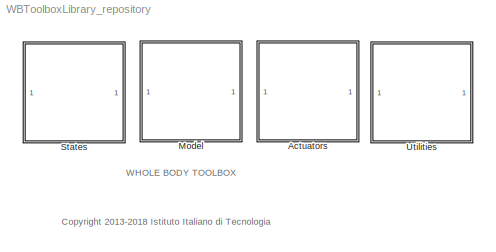
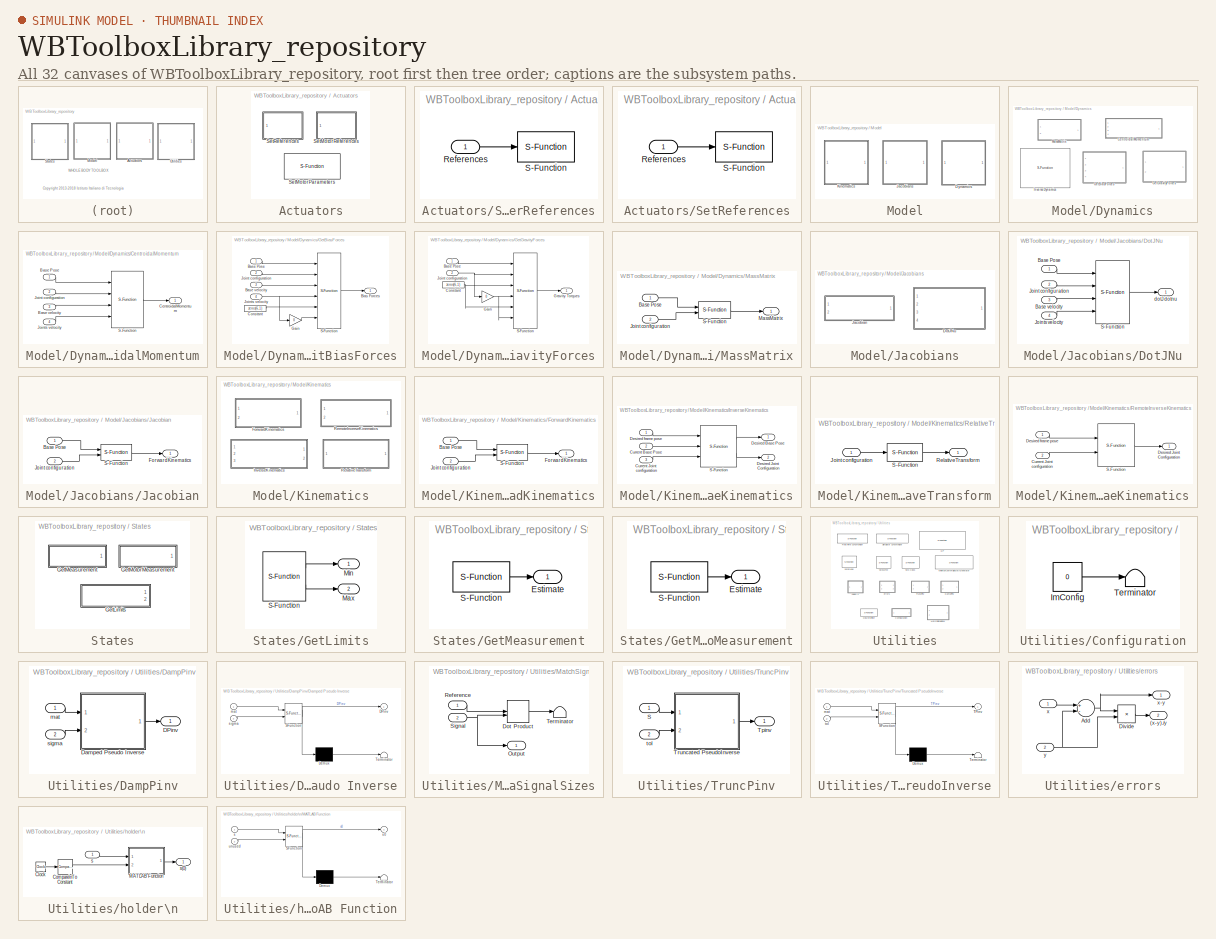
[diagram: thumbnail index - all 32 canvases of the model, root first then tree order]
MODEL WBToolboxLibrary_repository
KIND library
BLOCK [SubSystem] Actuators
  Ports = []
  RequestExecContextInheritance = off
  SID = 224
BLOCK [S-Function] Actuators/SetMotorParameters
  EnableBusSupport = off
  FunctionName = BlockFactory
  Parameters = 'SetMotorParameters','WBToolbox',WBTConfigParameters,configBlockAbsName,readP,readI,readD,pidType,setKTau,kTau,setBemf,bemf
  Ports = [1, 1]
  SFcnIsStateOwnerBlock = off
  SFunctionDeploymentMode = off
  SID = 1847
BLOCK [SubSystem] Actuators/SetMotorReferences
  Ports = [1]
  RequestExecContextInheritance = off
  SID = 1791
BLOCK [Inport] Actuators/SetMotorReferences/References
  IconDisplay = Port number
  SID = 1794
BLOCK [S-Function] Actuators/SetMotorReferences/S-Function
  EnableBusSupport = off
  FunctionName = BlockFactory
  Parameters = 'SetReferences','WBToolbox',WBTConfigParameters,configBlockAbsName,controlType,refSpeed
  Ports = [1]
  SFcnIsStateOwnerBlock = off
  SFunctionDeploymentMode = off
  SID = 1795
BLOCK [SubSystem] Actuators/SetReferences
  Ports = [1]
  RequestExecContextInheritance = off
  SID = 1767
BLOCK [Inport] Actuators/SetReferences/References
  IconDisplay = Port number
  SID = 1768
BLOCK [S-Function] Actuators/SetReferences/S-Function
  EnableBusSupport = off
  FunctionName = BlockFactory
  Parameters = 'SetReferences','WBToolbox',WBTConfigParameters,configBlockAbsName,controlType,refTrajectory
  Ports = [1]
  SFcnIsStateOwnerBlock = off
  SFunctionDeploymentMode = off
  SID = 1769
BLOCK [SubSystem] Model
  Ports = []
  RequestExecContextInheritance = off
  SID = 209
BLOCK [SubSystem] Model/Dynamics
  Ports = []
  RequestExecContextInheritance = off
  SID = 369
BLOCK [SubSystem] Model/Dynamics/CentroidalMomentum
  Ports = [4, 1]
  RequestExecContextInheritance = off
  SID = 1694
BLOCK [Inport] Model/Dynamics/CentroidalMomentum/Base Pose
  IconDisplay = Port number
  SID = 1695
BLOCK [Inport] Model/Dynamics/CentroidalMomentum/Base velocity
  IconDisplay = Port number
  Port = 3
  SID = 1697
BLOCK [Outport] Model/Dynamics/CentroidalMomentum/CentroidalMomentum
  IconDisplay = Port number
  SID = 1700
BLOCK [Inport] Model/Dynamics/CentroidalMomentum/Joint configuration
  IconDisplay = Port number
  Port = 2
  SID = 1696
BLOCK [Inport] Model/Dynamics/CentroidalMomentum/Joints velocity
  IconDisplay = Port number
  Port = 4
  SID = 1698
BLOCK [S-Function] Model/Dynamics/CentroidalMomentum/S-Function
  EnableBusSupport = off
  FunctionName = BlockFactory
  Parameters = 'CentroidalMomentum','WBToolbox',WBTConfigParameters,configBlockAbsName
  Ports = [4, 1]
  SFcnIsStateOwnerBlock = off
  SFunctionDeploymentMode = off
  SID = 1699
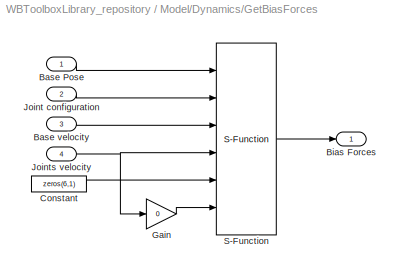
BLOCK [SubSystem] Model/Dynamics/GetBiasForces
  Ports = [4, 1]
  RequestExecContextInheritance = off
  SID = 1724
BLOCK [Inport] Model/Dynamics/GetBiasForces/Base Pose
  IconDisplay = Port number
  SID = 1776
BLOCK [Inport] Model/Dynamics/GetBiasForces/Base velocity
  IconDisplay = Port number
  Port = 3
  SID = 1778
BLOCK [Outport] Model/Dynamics/GetBiasForces/Bias Forces
  IconDisplay = Port number
  SID = 1783
BLOCK [Constant] Model/Dynamics/GetBiasForces/Constant
  SID = 1780
  Value = zeros(6,1)
BLOCK [Gain] Model/Dynamics/GetBiasForces/Gain
  Gain = 0
  OutDataTypeStr = Inherit: Inherit via internal rule
  ParamDataTypeStr = Inherit: Inherit via internal rule
  SID = 1781
  SaturateOnIntegerOverflow = off
BLOCK [Inport] Model/Dynamics/GetBiasForces/Joint configuration
  IconDisplay = Port number
  Port = 2
  SID = 1777
BLOCK [Inport] Model/Dynamics/GetBiasForces/Joints velocity
  IconDisplay = Port number
  Port = 4
  SID = 1779
BLOCK [S-Function] Model/Dynamics/GetBiasForces/S-Function
  EnableBusSupport = off
  FunctionName = BlockFactory
  Parameters = 'InverseDynamics','WBToolbox',WBTConfigParameters,configBlockAbsName
  Ports = [6, 1]
  SFcnIsStateOwnerBlock = off
  SFunctionDeploymentMode = off
  SID = 1782
BLOCK [SubSystem] Model/Dynamics/GetGravityForces
  Ports = [2, 1]
  RequestExecContextInheritance = off
  SID = 1733
BLOCK [Inport] Model/Dynamics/GetGravityForces/Base Pose
  IconDisplay = Port number
  SID = 1784
BLOCK [Constant] Model/Dynamics/GetGravityForces/Constant
  SID = 1786
  Value = zeros(6,1)
BLOCK [Gain] Model/Dynamics/GetGravityForces/Gain
  Gain = 0
  OutDataTypeStr = Inherit: Inherit via internal rule
  ParamDataTypeStr = Inherit: Inherit via internal rule
  SID = 1787
  SaturateOnIntegerOverflow = off
BLOCK [Outport] Model/Dynamics/GetGravityForces/Gravity Torques
  IconDisplay = Port number
  SID = 1789
BLOCK [Inport] Model/Dynamics/GetGravityForces/Joint configuration
  IconDisplay = Port number
  Port = 2
  SID = 1785
BLOCK [S-Function] Model/Dynamics/GetGravityForces/S-Function
  EnableBusSupport = off
  FunctionName = BlockFactory
  Parameters = 'InverseDynamics','WBToolbox',WBTConfigParameters,configBlockAbsName
  Ports = [6, 1]
  SFcnIsStateOwnerBlock = off
  SFunctionDeploymentMode = off
  SID = 1788
BLOCK [S-Function] Model/Dynamics/InverseDynamics
  EnableBusSupport = off
  FunctionName = BlockFactory
  Parameters = 'InverseDynamics','WBToolbox',WBTConfigParameters,configBlockAbsName
  Ports = [6, 1]
  SFcnIsStateOwnerBlock = off
  SFunctionDeploymentMode = off
  SID = 1748
BLOCK [SubSystem] Model/Dynamics/MassMatrix
  Ports = [2, 1]
  RequestExecContextInheritance = off
  SID = 1633
BLOCK [Inport] Model/Dynamics/MassMatrix/Base Pose
  IconDisplay = Port number
  SID = 1634
BLOCK [Inport] Model/Dynamics/MassMatrix/Joint configuration
  IconDisplay = Port number
  Port = 2
  SID = 1635
BLOCK [Outport] Model/Dynamics/MassMatrix/MassMatrix
  IconDisplay = Port number
  SID = 1637
BLOCK [S-Function] Model/Dynamics/MassMatrix/S-Function
  EnableBusSupport = off
  FunctionName = BlockFactory
  Parameters = 'MassMatrix','WBToolbox',WBTConfigParameters,configBlockAbsName
  Ports = [2, 1]
  SFcnIsStateOwnerBlock = off
  SFunctionDeploymentMode = off
  SID = 1636
BLOCK [SubSystem] Model/Jacobians
  Ports = []
  RequestExecContextInheritance = off
  SID = 202
BLOCK [SubSystem] Model/Jacobians/DotJNu
  Ports = [4, 1]
  RequestExecContextInheritance = off
  SID = 1683
BLOCK [Inport] Model/Jacobians/DotJNu/Base Pose
  IconDisplay = Port number
  SID = 1684
BLOCK [Inport] Model/Jacobians/DotJNu/Base velocity
  IconDisplay = Port number
  Port = 3
  SID = 1686
BLOCK [Inport] Model/Jacobians/DotJNu/Joint configuration
  IconDisplay = Port number
  Port = 2
  SID = 1685
BLOCK [Inport] Model/Jacobians/DotJNu/Joints velocity
  IconDisplay = Port number
  Port = 4
  SID = 1687
BLOCK [S-Function] Model/Jacobians/DotJNu/S-Function
  EnableBusSupport = off
  FunctionName = BlockFactory
  Parameters = 'DotJNu','WBToolbox',WBTConfigParameters,configBlockAbsName,frameName
  Ports = [4, 1]
  SFcnIsStateOwnerBlock = off
  SFunctionDeploymentMode = off
  SID = 1688
BLOCK [Outport] Model/Jacobians/DotJNu/dotJ dotnu
  IconDisplay = Port number
  SID = 1689
BLOCK [SubSystem] Model/Jacobians/Jacobian
  Ports = [2, 1]
  RequestExecContextInheritance = off
  SID = 1663
BLOCK [Inport] Model/Jacobians/Jacobian/Base Pose
  IconDisplay = Port number
  SID = 1664
BLOCK [Outport] Model/Jacobians/Jacobian/ForwardKinematics
  IconDisplay = Port number
  SID = 1667
BLOCK [Inport] Model/Jacobians/Jacobian/Joint configuration
  IconDisplay = Port number
  Port = 2
  SID = 1665
BLOCK [S-Function] Model/Jacobians/Jacobian/S-Function
  EnableBusSupport = off
  FunctionName = BlockFactory
  Parameters = 'Jacobian','WBToolbox',WBTConfigParameters,configBlockAbsName,frameName
  Ports = [2, 1]
  SFcnIsStateOwnerBlock = off
  SFunctionDeploymentMode = off
  SID = 1666
BLOCK [SubSystem] Model/Kinematics
  Ports = []
  RequestExecContextInheritance = off
  SID = 176
BLOCK [SubSystem] Model/Kinematics/ForwardKinematics
  Ports = [2, 1]
  RequestExecContextInheritance = off
  SID = 1647
BLOCK [Inport] Model/Kinematics/ForwardKinematics/Base Pose
  IconDisplay = Port number
  SID = 1648
BLOCK [Outport] Model/Kinematics/ForwardKinematics/ForwardKinematics
  IconDisplay = Port number
  SID = 1651
BLOCK [Inport] Model/Kinematics/ForwardKinematics/Joint configuration
  IconDisplay = Port number
  Port = 2
  SID = 1649
BLOCK [S-Function] Model/Kinematics/ForwardKinematics/S-Function
  EnableBusSupport = off
  FunctionName = BlockFactory
  Parameters = 'ForwardKinematics','WBToolbox',WBTConfigParameters,configBlockAbsName,frameName
  Ports = [2, 1]
  SFcnIsStateOwnerBlock = off
  SFunctionDeploymentMode = off
  SID = 1650
BLOCK [SubSystem] Model/Kinematics/InverseKinematics
  Commented = on
  InitFcn = if ~exist('WBT_robotName','var')\n    WBT_robotName = '';\nend\nif ~exist('WBT_modelName','var')\n    WBT_modelName = 'WBT_simulink';\nend\nif ~exist('WBT_wbiFilename','var')\n    WBT_wbiFilename = 'yarpWholeBodyInterface.ini';\nend\nif ~exist('WBT_wbiList','var')\n    WBT_wbiList = 'ROBOT_TORQUE_CONTROL_JOINTS';\nend
  Ports = [3, 2]
  RequestExecContextInheritance = off
  SID = 1754
BLOCK [Inport] Model/Kinematics/InverseKinematics/Current Base Pose
  IconDisplay = Port number
  Port = 2
  SID = 1755
BLOCK [Inport] Model/Kinematics/InverseKinematics/Current Joint configuration
  IconDisplay = Port number
  Port = 3
  SID = 1756
BLOCK [Outport] Model/Kinematics/InverseKinematics/Desired Base Pose
  IconDisplay = Port number
  SID = 1758
BLOCK [Outport] Model/Kinematics/InverseKinematics/Desired Joint Configuration
  IconDisplay = Port number
  Port = 2
  SID = 1760
BLOCK [Inport] Model/Kinematics/InverseKinematics/Desired frame pose
  IconDisplay = Port number
  SID = 1759
BLOCK [S-Function] Model/Kinematics/InverseKinematics/S-Function
  EnableBusSupport = off
  FunctionName = WBToolbox
  Parameters = 'InverseKinematics',robotName,localName,wbiFile,wbiList,baseFrame, endEffFrame,optOption
  Ports = [3, 2]
  SFcnIsStateOwnerBlock = off
  SFunctionDeploymentMode = off
  SID = 1757
BLOCK [SubSystem] Model/Kinematics/RelativeTransform
  Ports = [1, 1]
  RequestExecContextInheritance = off
  SID = 1799
BLOCK [Inport] Model/Kinematics/RelativeTransform/Joint configuration
  IconDisplay = Port number
  SID = 1800
BLOCK [Outport] Model/Kinematics/RelativeTransform/RelativeTransform
  IconDisplay = Port number
  SID = 1803
BLOCK [S-Function] Model/Kinematics/RelativeTransform/S-Function
  EnableBusSupport = off
  FunctionName = BlockFactory
  Parameters = 'RelativeTransform','WBToolbox',WBTConfigParameters,configBlockAbsName,frame1, frame2
  Ports = [1, 1]
  SFcnIsStateOwnerBlock = off
  SFunctionDeploymentMode = off
  SID = 1806
BLOCK [SubSystem] Model/Kinematics/RemoteInverseKinematics
  Commented = on
  InitFcn = if ~exist('WBT_robotName','var')\n    WBT_robotName = '';\nend\nif ~exist('WBT_modelName','var')\n    WBT_modelName = 'WBT_simulink';\nend\nif ~exist('WBT_wbiFilename','var')\n    WBT_wbiFilename = 'yarpWholeBodyInterface.ini';\nend\nif ~exist('WBT_wbiList','var')\n    WBT_wbiList = 'ROBOT_TORQUE_CONTROL_JOINTS';\nend
  Ports = [2, 1]
  RequestExecContextInheritance = off
  SID = 1761
BLOCK [Inport] Model/Kinematics/RemoteInverseKinematics/Current Joint configuration
  IconDisplay = Port number
  Port = 2
  SID = 1763
BLOCK [Outport] Model/Kinematics/RemoteInverseKinematics/Desired Joint Configuration
  IconDisplay = Port number
  SID = 1765
BLOCK [Inport] Model/Kinematics/RemoteInverseKinematics/Desired frame pose
  IconDisplay = Port number
  SID = 1762
BLOCK [S-Function] Model/Kinematics/RemoteInverseKinematics/S-Function
  EnableBusSupport = off
  FunctionName = WBToolbox
  Parameters = 'RemoteInverseKinematics',solverName, dofs, optOption
  Ports = [2, 1]
  SFcnIsStateOwnerBlock = off
  SFunctionDeploymentMode = off
  SID = 1764
BLOCK [SubSystem] States
  Ports = []
  RequestExecContextInheritance = off
  SID = 206
BLOCK [SubSystem] States/GetLimits
  Ports = [0, 2]
  RequestExecContextInheritance = off
  SID = 1690
BLOCK [Outport] States/GetLimits/Max
  IconDisplay = Port number
  Port = 2
  SID = 1690:1693
BLOCK [Outport] States/GetLimits/Min
  IconDisplay = Port number
  SID = 1690:1692
BLOCK [S-Function] States/GetLimits/S-Function
  EnableBusSupport = off
  FunctionName = BlockFactory
  Parameters = 'GetLimits','WBToolbox',WBTConfigParameters,configBlockAbsName,limitsType
  Ports = [0, 2]
  SFcnIsStateOwnerBlock = off
  SFunctionDeploymentMode = off
  SID = 1690:1691
BLOCK [SubSystem] States/GetMeasurement
  Ports = [0, 1]
  RequestExecContextInheritance = off
  SID = 1671
BLOCK [Outport] States/GetMeasurement/Estimate
  IconDisplay = Port number
  SID = 1673
BLOCK [S-Function] States/GetMeasurement/S-Function
  EnableBusSupport = off
  FunctionName = BlockFactory
  Parameters = 'GetMeasurement','WBToolbox',WBTConfigParameters,configBlockAbsName,measuredType
  Ports = [0, 1]
  SFcnIsStateOwnerBlock = off
  SFunctionDeploymentMode = off
  SID = 1672
BLOCK [SubSystem] States/GetMotorMeasurement
  Ports = [0, 1]
  RequestExecContextInheritance = off
  SID = 1796
BLOCK [Outport] States/GetMotorMeasurement/Estimate
  IconDisplay = Port number
  SID = 1798
BLOCK [S-Function] States/GetMotorMeasurement/S-Function
  EnableBusSupport = off
  FunctionName = BlockFactory
  Parameters = 'GetMeasurement','WBToolbox',WBTConfigParameters,configBlockAbsName,measuredType
  Ports = [0, 1]
  SFcnIsStateOwnerBlock = off
  SFunctionDeploymentMode = off
  SID = 1797
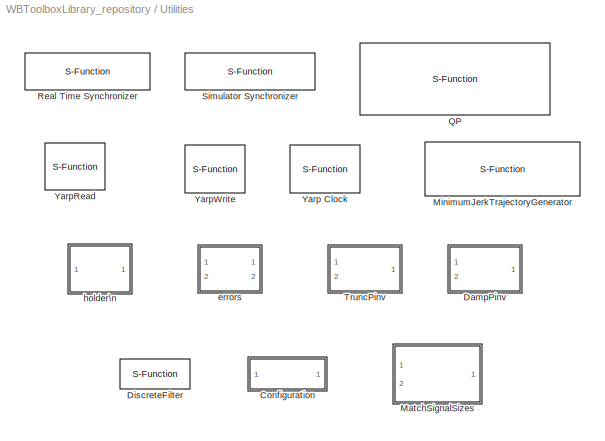
BLOCK [SubSystem] Utilities
  Ports = []
  RequestExecContextInheritance = off
  SID = 192
BLOCK [SubSystem] Utilities/Configuration
  InitFcn = source = get_param(gcb,'ConfigSource');\n\nif strcmp(source, 'Workspace')\n    object = get_param(gcb,'ConfigObject');\n    WBToolbox.ConfigurationToMask(gcb, object);\nend\n\nWBToolbox.MaskToConfiguration(gcb);\n\nclear object source
  Ports = []
  RequestExecContextInheritance = off
  SID = 1774
BLOCK [Constant] Utilities/Configuration/ImConfig
  SID = 1774:67
  Value = 0
BLOCK [Terminator] Utilities/Configuration/Terminator
  SID = 1774:68
BLOCK [SubSystem] Utilities/DampPinv
  Ports = [2, 1]
  RequestExecContextInheritance = off
  SID = 104
BLOCK [Outport] Utilities/DampPinv/DPinv
  IconDisplay = Port number
  SID = 108
BLOCK [SubSystem] Utilities/DampPinv/Damped Pseudo Inverse
  ErrorFcn = Stateflow.Translate.translate
  PermitHierarchicalResolution = ExplicitOnly
  Ports = [2, 1]
  RequestExecContextInheritance = off
  SFBlockType = MATLAB Function
  SID = 107
  TreatAsAtomicUnit = on
BLOCK [Demux] Utilities/DampPinv/Damped Pseudo Inverse/ Demux 
  Outputs = 1
  Ports = [1, 1]
  SID = 107::1627
BLOCK [S-Function] Utilities/DampPinv/Damped Pseudo Inverse/ SFunction 
  EnableBusSupport = off
  FunctionName = sf_sfun
  PortCounts = [2 2]
  Ports = [2, 2]
  SFcnIsStateOwnerBlock = off
  SFunctionDeploymentMode = off
  SID = 107::1626
  Tag = Stateflow S-Function WBToolboxLibrary_repository 6
BLOCK [Terminator] Utilities/DampPinv/Damped Pseudo Inverse/ Terminator 
  SID = 107::1628
BLOCK [Outport] Utilities/DampPinv/Damped Pseudo Inverse/DPinv
  IconDisplay = Port number
  SID = 107::5
BLOCK [Inport] Utilities/DampPinv/Damped Pseudo Inverse/mat
  IconDisplay = Port number
  SID = 107::1
BLOCK [Inport] Utilities/DampPinv/Damped Pseudo Inverse/sigma
  IconDisplay = Port number
  Port = 2
  SID = 107::25
BLOCK [Inport] Utilities/DampPinv/mat
  IconDisplay = Port number
  SID = 105
BLOCK [Inport] Utilities/DampPinv/sigma
  IconDisplay = Port number
  Port = 2
  SID = 106
BLOCK [S-Function] Utilities/DiscreteFilter
  EnableBusSupport = off
  FunctionName = BlockFactory
  Parameters = 'DiscreteFilter','WBToolbox',filterDataStruct
  Ports = [1, 1]
  SFcnIsStateOwnerBlock = off
  SFunctionDeploymentMode = off
  SID = 1790
BLOCK [SubSystem] Utilities/MatchSignalSizes
  Ports = [2, 1]
  RequestExecContextInheritance = off
  SID = 1818
BLOCK [DotProduct] Utilities/MatchSignalSizes/Dot Product
  OutDataTypeStr = Inherit: Inherit via internal rule
  SID = 1836
BLOCK [Outport] Utilities/MatchSignalSizes/Output
  IconDisplay = Port number
  SID = 1823
BLOCK [Inport] Utilities/MatchSignalSizes/Reference
  IconDisplay = Port number
  SID = 1819
BLOCK [Inport] Utilities/MatchSignalSizes/Signal
  IconDisplay = Port number
  Port = 2
  SID = 1820
BLOCK [Terminator] Utilities/MatchSignalSizes/Terminator
  SID = 1822
BLOCK [S-Function] Utilities/MinimumJerkTrajectoryGenerator
  EnableBusSupport = off
  FunctionName = BlockFactory
  Parameters = 'MinimumJerkTrajectoryGenerator','WBToolbox',sampleTime,settlingTime,firstDerivatives,secondDerivatives,explicitInitialValue,externalSettlingTime,resetOnSettlingTime
  Ports = [1, 3]
  SFcnIsStateOwnerBlock = off
  SFunctionDeploymentMode = off
  SID = 1747
BLOCK [S-Function] Utilities/QP
  EnableBusSupport = off
  FunctionName = BlockFactory
  Parameters = 'QpOases','WBToolbox',lbA,ubA,lb,ub,computeObjVal,stopIfFails
  Ports = [4, 2]
  SFcnIsStateOwnerBlock = off
  SFunctionDeploymentMode = off
  SID = 1807
BLOCK [S-Function] Utilities/Real Time Synchronizer
  EnableBusSupport = off
  FunctionName = BlockFactory
  Parameters = 'RealTimeSynchronizer','WBToolbox',period
  Ports = []
  SFcnIsStateOwnerBlock = off
  SFunctionDeploymentMode = off
  SID = 1657
BLOCK [S-Function] Utilities/Simulator Synchronizer
  EnableBusSupport = off
  FunctionName = BlockFactory
  Parameters = 'SimulatorSynchronizer','WBToolbox',period, serverPortName, clientPortName
  Ports = []
  SFcnIsStateOwnerBlock = off
  SFunctionDeploymentMode = off
  SID = 1658
BLOCK [SubSystem] Utilities/TruncPinv
  Ports = [2, 1]
  RequestExecContextInheritance = off
  SID = 109
BLOCK [Inport] Utilities/TruncPinv/S
  IconDisplay = Port number
  SID = 110
BLOCK [Outport] Utilities/TruncPinv/Tpinv
  IconDisplay = Port number
  SID = 113
BLOCK [SubSystem] Utilities/TruncPinv/Truncated PseudoInverse
  ErrorFcn = Stateflow.Translate.translate
  PermitHierarchicalResolution = ExplicitOnly
  Ports = [2, 1]
  RequestExecContextInheritance = off
  SFBlockType = MATLAB Function
  SID = 112
  TreatAsAtomicUnit = on
BLOCK [Demux] Utilities/TruncPinv/Truncated PseudoInverse/ Demux 
  Outputs = 1
  Ports = [1, 1]
  SID = 112::1618
BLOCK [S-Function] Utilities/TruncPinv/Truncated PseudoInverse/ SFunction 
  EnableBusSupport = off
  FunctionName = sf_sfun
  PortCounts = [2 2]
  Ports = [2, 2]
  SFcnIsStateOwnerBlock = off
  SFunctionDeploymentMode = off
  SID = 112::1617
  Tag = Stateflow S-Function WBToolboxLibrary_repository 7
BLOCK [Terminator] Utilities/TruncPinv/Truncated PseudoInverse/ Terminator 
  SID = 112::1619
BLOCK [Outport] Utilities/TruncPinv/Truncated PseudoInverse/TPinv
  IconDisplay = Port number
  SID = 112::5
BLOCK [Inport] Utilities/TruncPinv/Truncated PseudoInverse/mat
  IconDisplay = Port number
  SID = 112::1
BLOCK [Inport] Utilities/TruncPinv/Truncated PseudoInverse/tol
  IconDisplay = Port number
  Port = 2
  SID = 112::25
BLOCK [Inport] Utilities/TruncPinv/tol
  IconDisplay = Port number
  Port = 2
  SID = 111
BLOCK [S-Function] Utilities/Yarp Clock
  EnableBusSupport = off
  FunctionName = BlockFactory
  Parameters = 'YarpClock','WBToolbox'
  Ports = [0, 1]
  SFcnIsStateOwnerBlock = off
  SFunctionDeploymentMode = off
  SID = 1773
BLOCK [S-Function] Utilities/YarpRead
  EnableBusSupport = off
  FunctionName = BlockFactory
  Parameters = 'YarpRead','WBToolbox',portName,signalSize,blocking,timestamp,autoconnect,errorOnConnection,timeout
  Ports = [0, 2]
  SFcnIsStateOwnerBlock = off
  SFunctionDeploymentMode = off
  SID = 1632
BLOCK [S-Function] Utilities/YarpWrite
  EnableBusSupport = off
  FunctionName = BlockFactory
  Parameters = 'YarpWrite','WBToolbox',portName,autoconnect,errorOnConnection
  Ports = [1]
  SFcnIsStateOwnerBlock = off
  SFunctionDeploymentMode = off
  SID = 1659
BLOCK [SubSystem] Utilities/errors
  Ports = [2, 2]
  RequestExecContextInheritance = off
  SID = 714
BLOCK [Outport] Utilities/errors/(x-y).//y
  IconDisplay = Port number
  Port = 2
  SID = 720
BLOCK [Sum] Utilities/errors/Add
  InputSameDT = off
  Inputs = +-
  OutDataTypeStr = Inherit: Inherit via internal rule
  Ports = [2, 1]
  SID = 717
  SaturateOnIntegerOverflow = off
BLOCK [Product] Utilities/errors/Divide
  InputSameDT = off
  Inputs = */
  OutDataTypeStr = Inherit: Inherit via internal rule
  Ports = [2, 1]
  RndMeth = Floor
  SID = 718
  SaturateOnIntegerOverflow = off
BLOCK [Inport] Utilities/errors/x
  IconDisplay = Port number
  SID = 715
BLOCK [Outport] Utilities/errors/x-y
  IconDisplay = Port number
  SID = 719
BLOCK [Inport] Utilities/errors/y
  IconDisplay = Port number
  Port = 2
  SID = 716
BLOCK [SubSystem] Utilities/holder\n
  Ports = [1, 1]
  RequestExecContextInheritance = off
  SID = 1296
BLOCK [Clock] Utilities/holder\n/Clock
  SID = 1298
BLOCK [Reference] Utilities/holder\n/Compare\nTo Constant  REF=simulink/Logic and Bit\nOperations/Compare\nTo Constant
  OutDataTypeStr = boolean
  Ports = [1, 1]
  SID = 1299
  SourceBlock = simulink/Logic and Bit\nOperations/Compare\nTo Constant
  SourceProductBaseCode = SL
  SourceProductName = Simulink
  SourceType = Compare To Constant
  ZeroCross = on
  const = 0
  relop = ==
BLOCK [SubSystem] Utilities/holder\n/MATLAB Function
  ErrorFcn = Stateflow.Translate.translate
  PermitHierarchicalResolution = ExplicitOnly
  Ports = [2, 1]
  RequestExecContextInheritance = off
  SFBlockType = MATLAB Function
  SID = 1300
  TreatAsAtomicUnit = on
BLOCK [Demux] Utilities/holder\n/MATLAB Function/ Demux 
  Outputs = 1
  Ports = [1, 1]
  SID = 1300::1624
BLOCK [S-Function] Utilities/holder\n/MATLAB Function/ SFunction 
  EnableBusSupport = off
  FunctionName = sf_sfun
  PortCounts = [2 2]
  Ports = [2, 2]
  SFcnIsStateOwnerBlock = off
  SFunctionDeploymentMode = off
  SID = 1300::1623
  Tag = Stateflow S-Function WBToolboxLibrary_repository 1
BLOCK [Terminator] Utilities/holder\n/MATLAB Function/ Terminator 
  SID = 1300::1625
BLOCK [Inport] Utilities/holder\n/MATLAB Function/s
  IconDisplay = Port number
  SID = 1300::24
BLOCK [Outport] Utilities/holder\n/MATLAB Function/s0
  IconDisplay = Port number
  SID = 1300::25
BLOCK [Inport] Utilities/holder\n/MATLAB Function/unused
  IconDisplay = Port number
  Port = 2
  SID = 1300::26
BLOCK [Inport] Utilities/holder\n/s
  IconDisplay = Port number
  SID = 1297
BLOCK [Outport] Utilities/holder\n/s(0)
  IconDisplay = Port number
  SID = 1301
ANNOTATION (root): \n \n <copyright redacted>\n \n This software is supported by: \n FP7 EU Project CoDyCo (No. 600716 ICT 2011.2.1) http://www.codyco.eu \n H2020 EU Project AnDy (No. 731540 H2020-ICT-2016-1) http://andy-project.eu
ANNOTATION (root): WHOLE BODY TOOLBOX
LINE Actuators/SetMotorReferences/References:1 -> Actuators/SetMotorReferences/S-Function:1
LINE Actuators/SetReferences/References:1 -> Actuators/SetReferences/S-Function:1
LINE Model/Dynamics/CentroidalMomentum/Base Pose:1 -> Model/Dynamics/CentroidalMomentum/S-Function:1
LINE Model/Dynamics/CentroidalMomentum/Base velocity:1 -> Model/Dynamics/CentroidalMomentum/S-Function:3
LINE Model/Dynamics/CentroidalMomentum/Joint configuration:1 -> Model/Dynamics/CentroidalMomentum/S-Function:2
LINE Model/Dynamics/CentroidalMomentum/Joints velocity:1 -> Model/Dynamics/CentroidalMomentum/S-Function:4
LINE Model/Dynamics/CentroidalMomentum/S-Function:1 -> Model/Dynamics/CentroidalMomentum/CentroidalMomentum:1
LINE Model/Dynamics/GetBiasForces/Base Pose:1 -> Model/Dynamics/GetBiasForces/S-Function:1
LINE Model/Dynamics/GetBiasForces/Base velocity:1 -> Model/Dynamics/GetBiasForces/S-Function:3
LINE Model/Dynamics/GetBiasForces/Constant:1 -> Model/Dynamics/GetBiasForces/S-Function:5
LINE Model/Dynamics/GetBiasForces/Gain:1 -> Model/Dynamics/GetBiasForces/S-Function:6
LINE Model/Dynamics/GetBiasForces/Joint configuration:1 -> Model/Dynamics/GetBiasForces/S-Function:2
NET Model/Dynamics/GetBiasForces/Joints velocity:1 -> Model/Dynamics/GetBiasForces/Gain:1, Model/Dynamics/GetBiasForces/S-Function:4
LINE Model/Dynamics/GetBiasForces/S-Function:1 -> Model/Dynamics/GetBiasForces/Bias Forces:1
LINE Model/Dynamics/GetGravityForces/Base Pose:1 -> Model/Dynamics/GetGravityForces/S-Function:1
NET Model/Dynamics/GetGravityForces/Constant:1 -> Model/Dynamics/GetGravityForces/S-Function:3, Model/Dynamics/GetGravityForces/S-Function:5
NET Model/Dynamics/GetGravityForces/Gain:1 -> Model/Dynamics/GetGravityForces/S-Function:4, Model/Dynamics/GetGravityForces/S-Function:6
NET Model/Dynamics/GetGravityForces/Joint configuration:1 -> Model/Dynamics/GetGravityForces/Gain:1, Model/Dynamics/GetGravityForces/S-Function:2
LINE Model/Dynamics/GetGravityForces/S-Function:1 -> Model/Dynamics/GetGravityForces/Gravity Torques:1
LINE Model/Dynamics/MassMatrix/Base Pose:1 -> Model/Dynamics/MassMatrix/S-Function:1
LINE Model/Dynamics/MassMatrix/Joint configuration:1 -> Model/Dynamics/MassMatrix/S-Function:2
LINE Model/Dynamics/MassMatrix/S-Function:1 -> Model/Dynamics/MassMatrix/MassMatrix:1
LINE Model/Jacobians/DotJNu/Base Pose:1 -> Model/Jacobians/DotJNu/S-Function:1
LINE Model/Jacobians/DotJNu/Base velocity:1 -> Model/Jacobians/DotJNu/S-Function:3
LINE Model/Jacobians/DotJNu/Joint configuration:1 -> Model/Jacobians/DotJNu/S-Function:2
LINE Model/Jacobians/DotJNu/Joints velocity:1 -> Model/Jacobians/DotJNu/S-Function:4
LINE Model/Jacobians/DotJNu/S-Function:1 -> Model/Jacobians/DotJNu/dotJ dotnu:1
LINE Model/Jacobians/Jacobian/Base Pose:1 -> Model/Jacobians/Jacobian/S-Function:1
LINE Model/Jacobians/Jacobian/Joint configuration:1 -> Model/Jacobians/Jacobian/S-Function:2
LINE Model/Jacobians/Jacobian/S-Function:1 -> Model/Jacobians/Jacobian/ForwardKinematics:1
LINE Model/Kinematics/ForwardKinematics/Base Pose:1 -> Model/Kinematics/ForwardKinematics/S-Function:1
LINE Model/Kinematics/ForwardKinematics/Joint configuration:1 -> Model/Kinematics/ForwardKinematics/S-Function:2
LINE Model/Kinematics/ForwardKinematics/S-Function:1 -> Model/Kinematics/ForwardKinematics/ForwardKinematics:1
LINE Model/Kinematics/InverseKinematics/Current Base Pose:1 -> Model/Kinematics/InverseKinematics/S-Function:2
LINE Model/Kinematics/InverseKinematics/Current Joint configuration:1 -> Model/Kinematics/InverseKinematics/S-Function:3
LINE Model/Kinematics/InverseKinematics/Desired frame pose:1 -> Model/Kinematics/InverseKinematics/S-Function:1
LINE Model/Kinematics/InverseKinematics/S-Function:1 -> Model/Kinematics/InverseKinematics/Desired Base Pose:1
LINE Model/Kinematics/InverseKinematics/S-Function:2 -> Model/Kinematics/InverseKinematics/Desired Joint Configuration:1
LINE Model/Kinematics/RelativeTransform/Joint configuration:1 -> Model/Kinematics/RelativeTransform/S-Function:1
LINE Model/Kinematics/RelativeTransform/S-Function:1 -> Model/Kinematics/RelativeTransform/RelativeTransform:1
LINE Model/Kinematics/RemoteInverseKinematics/Current Joint configuration:1 -> Model/Kinematics/RemoteInverseKinematics/S-Function:2
LINE Model/Kinematics/RemoteInverseKinematics/Desired frame pose:1 -> Model/Kinematics/RemoteInverseKinematics/S-Function:1
LINE Model/Kinematics/RemoteInverseKinematics/S-Function:1 -> Model/Kinematics/RemoteInverseKinematics/Desired Joint Configuration:1
LINE States/GetLimits/S-Function:1 -> States/GetLimits/Min:1
LINE States/GetLimits/S-Function:2 -> States/GetLimits/Max:1
LINE States/GetMeasurement/S-Function:1 -> States/GetMeasurement/Estimate:1
LINE States/GetMotorMeasurement/S-Function:1 -> States/GetMotorMeasurement/Estimate:1
LINE Utilities/Configuration/ImConfig:1 -> Utilities/Configuration/Terminator:1
LINE Utilities/DampPinv/Damped Pseudo Inverse/ Demux :1 -> Utilities/DampPinv/Damped Pseudo Inverse/ Terminator :1
LINE Utilities/DampPinv/Damped Pseudo Inverse/ SFunction :1 -> Utilities/DampPinv/Damped Pseudo Inverse/ Demux :1
LINE Utilities/DampPinv/Damped Pseudo Inverse/ SFunction :2 -> Utilities/DampPinv/Damped Pseudo Inverse/DPinv:1
LINE Utilities/DampPinv/Damped Pseudo Inverse/mat:1 -> Utilities/DampPinv/Damped Pseudo Inverse/ SFunction :1
LINE Utilities/DampPinv/Damped Pseudo Inverse/sigma:1 -> Utilities/DampPinv/Damped Pseudo Inverse/ SFunction :2
LINE Utilities/DampPinv/Damped Pseudo Inverse:1 -> Utilities/DampPinv/DPinv:1
LINE Utilities/DampPinv/mat:1 -> Utilities/DampPinv/Damped Pseudo Inverse:1
LINE Utilities/DampPinv/sigma:1 -> Utilities/DampPinv/Damped Pseudo Inverse:2
LINE Utilities/MatchSignalSizes/Dot Product:1 -> Utilities/MatchSignalSizes/Terminator:1
LINE Utilities/MatchSignalSizes/Reference:1 -> Utilities/MatchSignalSizes/Dot Product:1
NET Utilities/MatchSignalSizes/Signal:1 -> Utilities/MatchSignalSizes/Dot Product:2, Utilities/MatchSignalSizes/Output:1
LINE Utilities/TruncPinv/S:1 -> Utilities/TruncPinv/Truncated PseudoInverse:1
LINE Utilities/TruncPinv/Truncated PseudoInverse/ Demux :1 -> Utilities/TruncPinv/Truncated PseudoInverse/ Terminator :1
LINE Utilities/TruncPinv/Truncated PseudoInverse/ SFunction :1 -> Utilities/TruncPinv/Truncated PseudoInverse/ Demux :1
LINE Utilities/TruncPinv/Truncated PseudoInverse/ SFunction :2 -> Utilities/TruncPinv/Truncated PseudoInverse/TPinv:1
LINE Utilities/TruncPinv/Truncated PseudoInverse/mat:1 -> Utilities/TruncPinv/Truncated PseudoInverse/ SFunction :1
LINE Utilities/TruncPinv/Truncated PseudoInverse/tol:1 -> Utilities/TruncPinv/Truncated PseudoInverse/ SFunction :2
LINE Utilities/TruncPinv/Truncated PseudoInverse:1 -> Utilities/TruncPinv/Tpinv:1
LINE Utilities/TruncPinv/tol:1 -> Utilities/TruncPinv/Truncated PseudoInverse:2
NET Utilities/errors/Add:1 -> Utilities/errors/Divide:1, Utilities/errors/x-y:1
LINE Utilities/errors/Divide:1 -> Utilities/errors/(x-y).//y:1
LINE Utilities/errors/x:1 -> Utilities/errors/Add:1
NET Utilities/errors/y:1 -> Utilities/errors/Add:2, Utilities/errors/Divide:2
LINE Utilities/holder\n/Clock:1 -> Utilities/holder\n/Compare\nTo Constant:1
LINE Utilities/holder\n/Compare\nTo Constant:1 -> Utilities/holder\n/MATLAB Function:2
LINE Utilities/holder\n/MATLAB Function/ Demux :1 -> Utilities/holder\n/MATLAB Function/ Terminator :1
LINE Utilities/holder\n/MATLAB Function/ SFunction :1 -> Utilities/holder\n/MATLAB Function/ Demux :1
LINE Utilities/holder\n/MATLAB Function/ SFunction :2 -> Utilities/holder\n/MATLAB Function/s0:1
LINE Utilities/holder\n/MATLAB Function/s:1 -> Utilities/holder\n/MATLAB Function/ SFunction :1
LINE Utilities/holder\n/MATLAB Function/unused:1 -> Utilities/holder\n/MATLAB Function/ SFunction :2
LINE Utilities/holder\n/MATLAB Function:1 -> Utilities/holder\n/s(0):1
LINE Utilities/holder\n/s:1 -> Utilities/holder\n/MATLAB Function:1
note: NET lines group one-source signal fan-out (src -> all destinations, sorted); 1:1 wires keep LINE
CHART Utilities/holder\n/MATLAB Function states=1 transitions=1
  STATE_LABEL 'eML_blk_kernel()'
CHART Utilities/DampPinv/Damped Pseudo Inverse states=1 transitions=1
  STATE_LABEL 'eML_blk_kernel()'
CHART Utilities/TruncPinv/Truncated PseudoInverse states=1 transitions=1
  STATE_LABEL 'eML_blk_kernel()'
